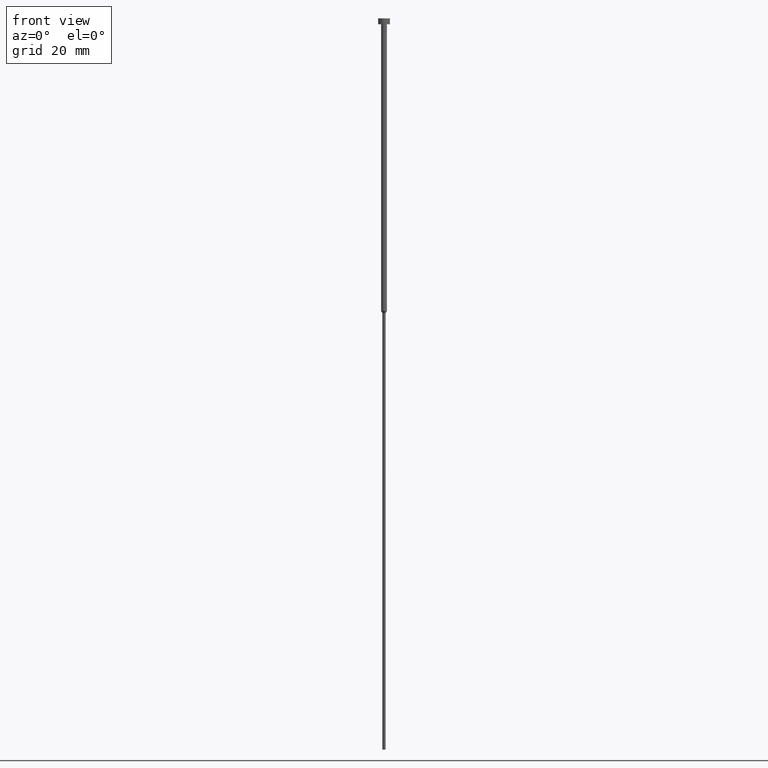
[diagram: clean part render]
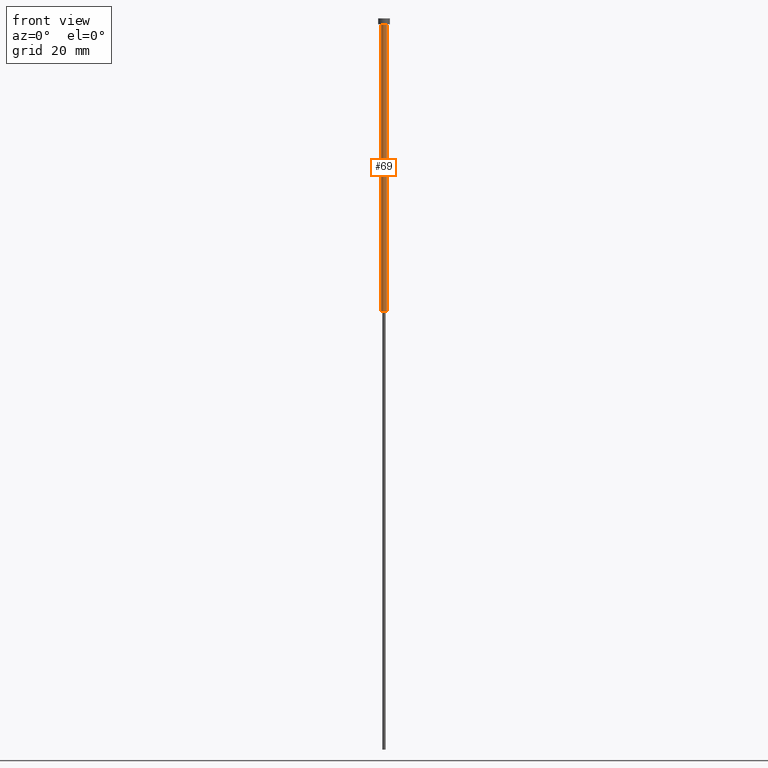
[diagram: same view with one face highlighted and labeled with its STEP entity id]
A machine part, front view. The second image highlights one B-rep face of the part: STEP entity #69.
In plain terms, the highlighted cylindrical surface (edge-blend (fillet) strip) has radius 1 mm, axis along (-0, -0, 1).
Its self-contained STEP definition (entity closure, byte-faithful):
#10 = VERTEX_POINT ( 'NONE', #249 ) ;
#21 = ORIENTED_EDGE ( 'NONE', *, *, #191, .F. ) ;
#30 = AXIS2_PLACEMENT_3D ( 'NONE', #230, #330, #204 ) ;
#37 = CARTESIAN_POINT ( 'NONE',  ( 1.000000000000003331, 0.000000000000000000, 0.000000000000000000 ) ) ;
#59 = EDGE_CURVE ( 'NONE', #306, #10, #282, .T. ) ;
#64 = CIRCLE ( 'NONE', #275, 1.000000000000003553 ) ;
#65 = VERTEX_POINT ( 'NONE', #82 ) ;
#68 = DIRECTION ( 'NONE',  ( -0.000000000000000000, -0.000000000000000000, 1.000000000000000000 ) ) ;
#69 = ADVANCED_FACE ( 'NONE', ( #301 ), #109, .T. ) ;
#72 = CARTESIAN_POINT ( 'NONE',  ( -1.000000000000003553, 1.224646799147357398E-16, -2.000000000000000444 ) ) ;
#75 = DIRECTION ( 'NONE',  ( 1.000000000000000000, 0.000000000000000000, 0.000000000000000000 ) ) ;
#82 = CARTESIAN_POINT ( 'NONE',  ( 1.000000000000003553, 0.000000000000000000, -2.000000000000000444 ) ) ;
#109 = CYLINDRICAL_SURFACE ( 'NONE', #30, 1.000000000000003331 ) ;
#110 = DIRECTION ( 'NONE',  ( -0.000000000000000000, -0.000000000000000000, 1.000000000000000000 ) ) ;
#111 = LINE ( 'NONE', #292, #207 ) ;
#119 = EDGE_CURVE ( 'NONE', #181, #65, #64, .T. ) ;
#121 = LINE ( 'NONE', #37, #137 ) ;
#137 = VECTOR ( 'NONE', #143, 1000.000000000000000 ) ;
#138 = CARTESIAN_POINT ( 'NONE',  ( 0.000000000000000000, 0.000000000000000000, -100.0000000000000000 ) ) ;
#143 = DIRECTION ( 'NONE',  ( -0.000000000000000000, -0.000000000000000000, 1.000000000000000000 ) ) ;
#148 = DIRECTION ( 'NONE',  ( -0.000000000000000000, -0.000000000000000000, 1.000000000000000000 ) ) ;
#164 = EDGE_CURVE ( 'NONE', #10, #65, #121, .T. ) ;
#167 = CARTESIAN_POINT ( 'NONE',  ( -1.000000000000003109, 1.224646799147356905E-16, -100.0000000000000000 ) ) ;
#181 = VERTEX_POINT ( 'NONE', #72 ) ;
#191 = EDGE_CURVE ( 'NONE', #306, #181, #111, .T. ) ;
#196 = ORIENTED_EDGE ( 'NONE', *, *, #119, .F. ) ;
#204 = DIRECTION ( 'NONE',  ( 1.000000000000000000, 0.000000000000000000, 0.000000000000000000 ) ) ;
#207 = VECTOR ( 'NONE', #68, 1000.000000000000000 ) ;
#213 = ORIENTED_EDGE ( 'NONE', *, *, #59, .T. ) ;
#216 = EDGE_LOOP ( 'NONE', ( #21, #213, #313, #196 ) ) ;
#230 = CARTESIAN_POINT ( 'NONE',  ( 0.000000000000000000, 0.000000000000000000, 0.000000000000000000 ) ) ;
#249 = CARTESIAN_POINT ( 'NONE',  ( 1.000000000000003109, 0.000000000000000000, -100.0000000000000000 ) ) ;
#255 = DIRECTION ( 'NONE',  ( 1.000000000000000000, 0.000000000000000000, 0.000000000000000000 ) ) ;
#275 = AXIS2_PLACEMENT_3D ( 'NONE', #320, #148, #75 ) ;
#277 = AXIS2_PLACEMENT_3D ( 'NONE', #138, #110, #255 ) ;
#282 = CIRCLE ( 'NONE', #277, 1.000000000000003109 ) ;
#292 = CARTESIAN_POINT ( 'NONE',  ( -1.000000000000003331, 1.224646799147357151E-16, 0.000000000000000000 ) ) ;
#301 = FACE_OUTER_BOUND ( 'NONE', #216, .T. ) ;
#306 = VERTEX_POINT ( 'NONE', #167 ) ;
#313 = ORIENTED_EDGE ( 'NONE', *, *, #164, .T. ) ;
#320 = CARTESIAN_POINT ( 'NONE',  ( 0.000000000000000000, 0.000000000000000000, -2.000000000000000444 ) ) ;
#330 = DIRECTION ( 'NONE',  ( -0.000000000000000000, -0.000000000000000000, 1.000000000000000000 ) ) ;